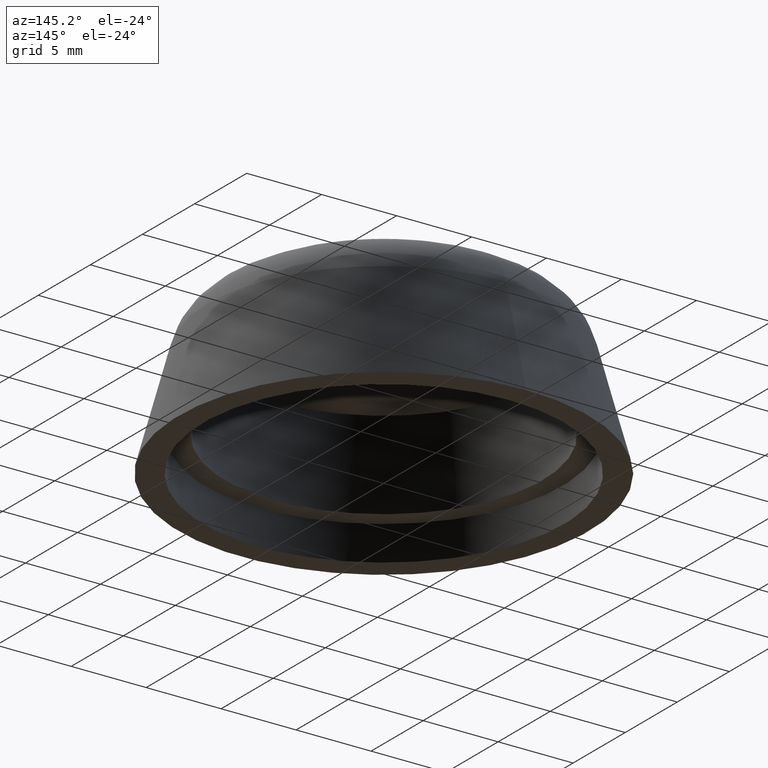
[diagram: clean part render]
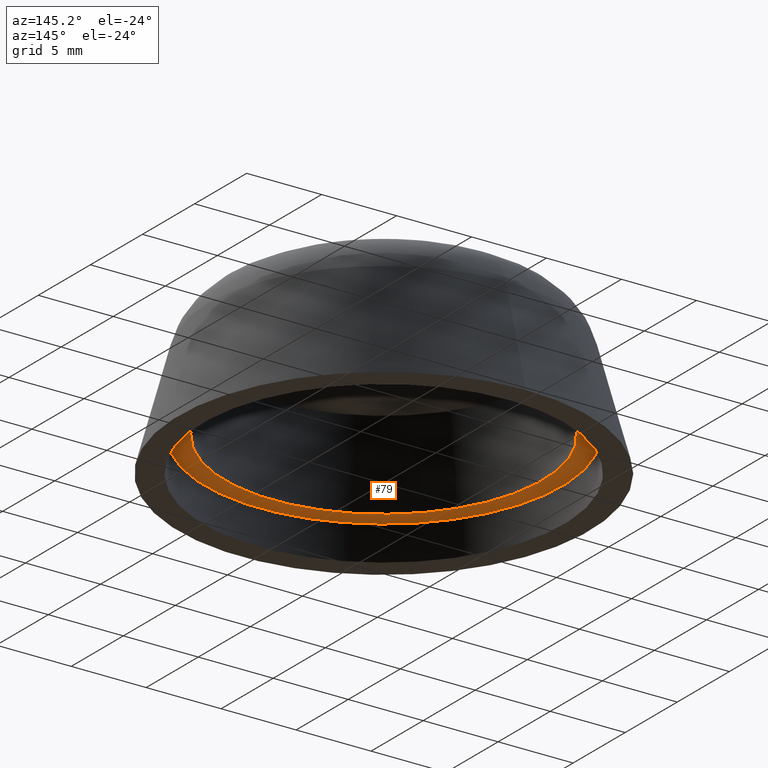
[diagram: same view with one face highlighted and labeled with its STEP entity id]
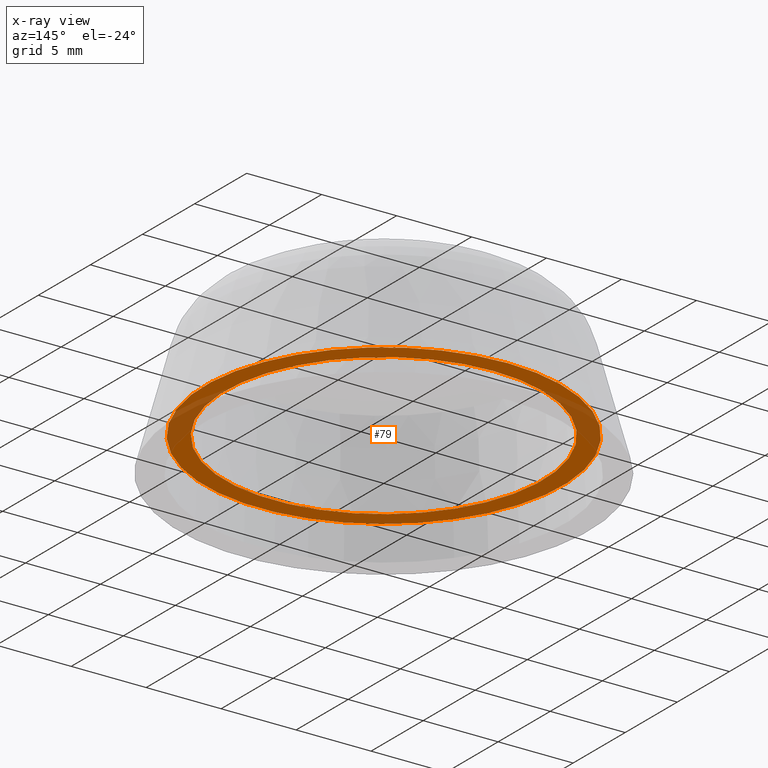
[diagram: x-ray of the same camera — body ghosted, the highlighted face saturated]
A machine part, auxiliary view. The second image highlights one B-rep face of the part: STEP entity #79.
The next image is the same camera in x-ray: the body ghosted, the highlighted face saturated — about 16% of this face is hidden behind the body in this view.
In plain terms, the highlighted planar face has unit normal (0, -0, -1).
Its self-contained STEP definition (entity closure, byte-faithful):
#79 = ADVANCED_FACE( '', ( #96, #97 ), #98, .T. );
#96 = FACE_OUTER_BOUND( '', #156, .T. );
#97 = FACE_BOUND( '', #157, .T. );
#98 = PLANE( '', #158 );
#156 = EDGE_LOOP( '', ( #187 ) );
#157 = EDGE_LOOP( '', ( #188 ) );
#158 = AXIS2_PLACEMENT_3D( '', #189, #190, #191 );
#187 = ORIENTED_EDGE( '', *, *, #217, .T. );
#188 = ORIENTED_EDGE( '', *, *, #216, .F. );
#189 = CARTESIAN_POINT( '', ( -1.94290371893365E-015, -10.5770245427262, 2.26000000000001 ) );
#190 = DIRECTION( '', ( 0.000000000000000, -6.12303176911189E-017, -1.00000000000000 ) );
#191 = DIRECTION( '', ( 0.000000000000000, 1.00000000000000, -6.12303176911189E-017 ) );
#216 = EDGE_CURVE( '', #227, #227, #228, .T. );
#217 = EDGE_CURVE( '', #229, #229, #230, .T. );
#227 = VERTEX_POINT( '', #243 );
#228 = CIRCLE( '', #244, 10.5770245427262 );
#229 = VERTEX_POINT( '', #245 );
#230 = CIRCLE( '', #246, 11.8970245427262 );
#243 = CARTESIAN_POINT( '', ( 0.000000000000000, 10.5770245427262, 2.26000000000001 ) );
#244 = AXIS2_PLACEMENT_3D( '', #262, #263, #264 );
#245 = CARTESIAN_POINT( '', ( 0.000000000000000, 11.8970245427262, 2.26000000000000 ) );
#246 = AXIS2_PLACEMENT_3D( '', #265, #266, #267 );
#262 = CARTESIAN_POINT( '', ( 0.000000000000000, -3.82077182392581E-016, 2.26000000000001 ) );
#263 = DIRECTION( '', ( 0.000000000000000, -6.12303176911189E-017, -1.00000000000000 ) );
#264 = DIRECTION( '', ( 0.000000000000000, 1.00000000000000, -6.12303176911189E-017 ) );
#265 = CARTESIAN_POINT( '', ( 0.000000000000000, -3.82077182392582E-016, 2.26000000000000 ) );
#266 = DIRECTION( '', ( 0.000000000000000, -6.12303176911189E-017, -1.00000000000000 ) );
#267 = DIRECTION( '', ( 0.000000000000000, 1.00000000000000, -6.12303176911189E-017 ) );